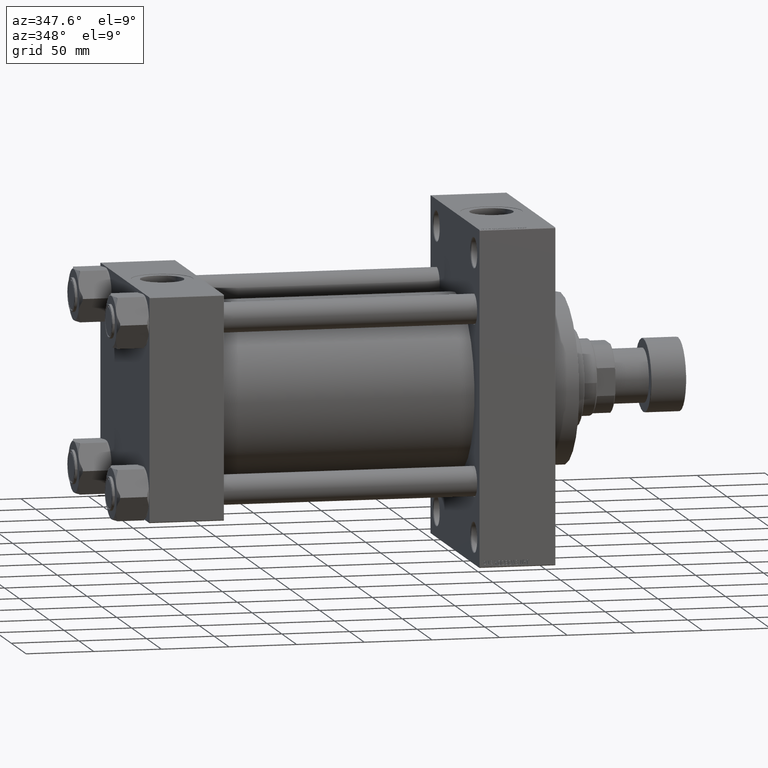
[diagram: clean part render]
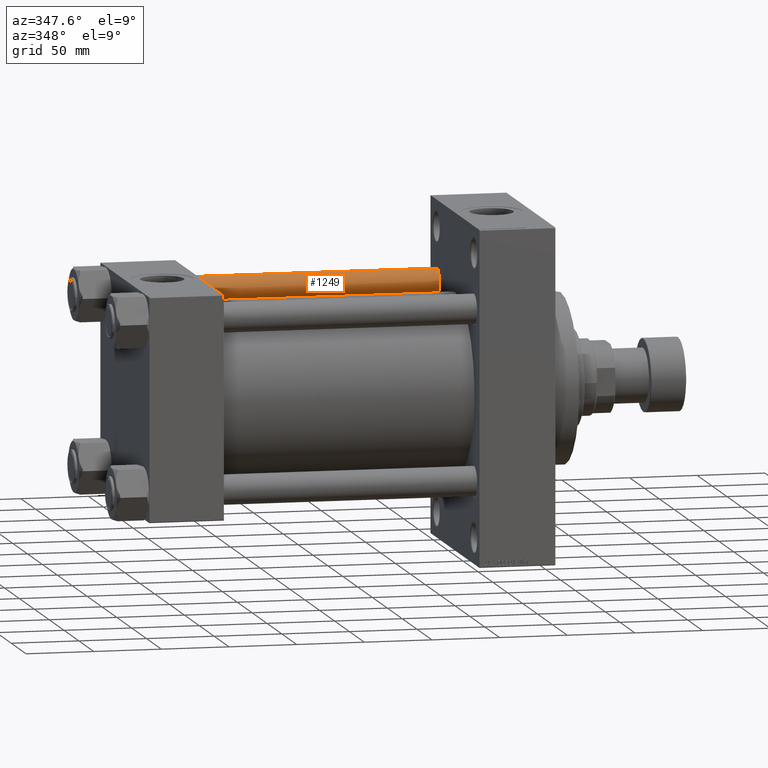
[diagram: same view with one face highlighted and labeled with its STEP entity id]
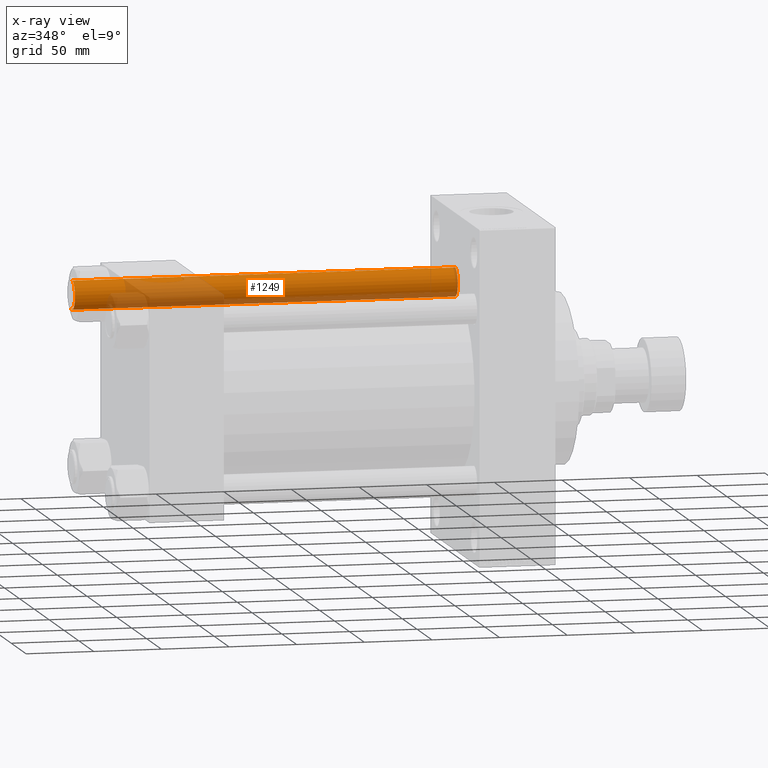
[diagram: x-ray of the same camera — body ghosted, the highlighted face saturated]
A machine part, auxiliary view. The second image highlights one B-rep face of the part: STEP entity #1249.
The next image is the same camera in x-ray: the body ghosted, the highlighted face saturated — about 35% of this face is hidden behind the body in this view.
In plain terms, the highlighted cylindrical surface (edge-blend (fillet) strip) has radius 11 mm, axis along (-1, -0, 0).
Its self-contained STEP definition (entity closure, byte-faithful):
#1249 = ADVANCED_FACE ( 'NONE', ( #2290 ), #43299, .T. ) ;
#2290 = FACE_OUTER_BOUND ( 'NONE', #11392, .T. ) ;
#4473 = VERTEX_POINT ( 'NONE', #40278 ) ;
#4611 = DIRECTION ( 'NONE',  ( 0.000000000000000000, 0.000000000000000000, -1.000000000000000000 ) ) ;
#6125 = DIRECTION ( 'NONE',  ( 1.000000000000000000, 0.000000000000000000, 0.000000000000000000 ) ) ;
#6903 = CIRCLE ( 'NONE', #13131, 11.00000000000000000 ) ;
#7649 = CARTESIAN_POINT ( 'NONE',  ( 11.00000000000000000, 1.347111479062088405E-15, 283.5000000000001137 ) ) ;
#8912 = DIRECTION ( 'NONE',  ( -0.000000000000000000, -0.000000000000000000, -1.000000000000000000 ) ) ;
#9156 = LINE ( 'NONE', #27229, #44858 ) ;
#9351 = CARTESIAN_POINT ( 'NONE',  ( 0.000000000000000000, 0.000000000000000000, 284.0000000000000000 ) ) ;
#11392 = EDGE_LOOP ( 'NONE', ( #23471, #27091, #35343, #47993 ) ) ;
#13131 = AXIS2_PLACEMENT_3D ( 'NONE', #46682, #13426, #6125 ) ;
#13426 = DIRECTION ( 'NONE',  ( -0.000000000000000000, -0.000000000000000000, 1.000000000000000000 ) ) ;
#13731 = DIRECTION ( 'NONE',  ( -1.000000000000000000, 0.000000000000000000, 0.000000000000000000 ) ) ;
#15940 = CARTESIAN_POINT ( 'NONE',  ( -11.00000000000000000, 0.000000000000000000, 0.5000000000000559552 ) ) ;
#17288 = AXIS2_PLACEMENT_3D ( 'NONE', #9351, #28158, #13731 ) ;
#17530 = VERTEX_POINT ( 'NONE', #7649 ) ;
#18280 = EDGE_CURVE ( 'NONE', #32152, #25906, #9156, .T. ) ;
#19725 = CARTESIAN_POINT ( 'NONE',  ( 0.000000000000000000, 0.000000000000000000, 283.5000000000001137 ) ) ;
#23299 = EDGE_CURVE ( 'NONE', #17530, #4473, #28889, .T. ) ;
#23471 = ORIENTED_EDGE ( 'NONE', *, *, #23299, .F. ) ;
#25490 = VECTOR ( 'NONE', #39150, 1000.000000000000000 ) ;
#25906 = VERTEX_POINT ( 'NONE', #15940 ) ;
#27091 = ORIENTED_EDGE ( 'NONE', *, *, #37615, .T. ) ;
#27229 = CARTESIAN_POINT ( 'NONE',  ( -11.00000000000000000, 0.000000000000000000, 284.0000000000000000 ) ) ;
#28158 = DIRECTION ( 'NONE',  ( -0.000000000000000000, -0.000000000000000000, -1.000000000000000000 ) ) ;
#28889 = LINE ( 'NONE', #47230, #25490 ) ;
#30442 = CARTESIAN_POINT ( 'NONE',  ( -11.00000000000000000, 0.000000000000000000, 283.5000000000001137 ) ) ;
#30791 = EDGE_CURVE ( 'NONE', #25906, #4473, #6903, .T. ) ;
#32152 = VERTEX_POINT ( 'NONE', #30442 ) ;
#34630 = DIRECTION ( 'NONE',  ( 1.000000000000000000, 0.000000000000000000, 0.000000000000000000 ) ) ;
#35343 = ORIENTED_EDGE ( 'NONE', *, *, #18280, .T. ) ;
#37615 = EDGE_CURVE ( 'NONE', #17530, #32152, #37653, .T. ) ;
#37653 = CIRCLE ( 'NONE', #38420, 11.00000000000000000 ) ;
#38420 = AXIS2_PLACEMENT_3D ( 'NONE', #19725, #4611, #34630 ) ;
#39150 = DIRECTION ( 'NONE',  ( -0.000000000000000000, -0.000000000000000000, -1.000000000000000000 ) ) ;
#40278 = CARTESIAN_POINT ( 'NONE',  ( 11.00000000000000000, 1.347111479062088405E-15, 0.5000000000000559552 ) ) ;
#43299 = CYLINDRICAL_SURFACE ( 'NONE', #17288, 11.00000000000000000 ) ;
#44858 = VECTOR ( 'NONE', #8912, 1000.000000000000000 ) ;
#46682 = CARTESIAN_POINT ( 'NONE',  ( 0.000000000000000000, 0.000000000000000000, 0.5000000000000559552 ) ) ;
#47230 = CARTESIAN_POINT ( 'NONE',  ( 11.00000000000000000, 1.347111479062088405E-15, 284.0000000000000000 ) ) ;
#47993 = ORIENTED_EDGE ( 'NONE', *, *, #30791, .T. ) ;